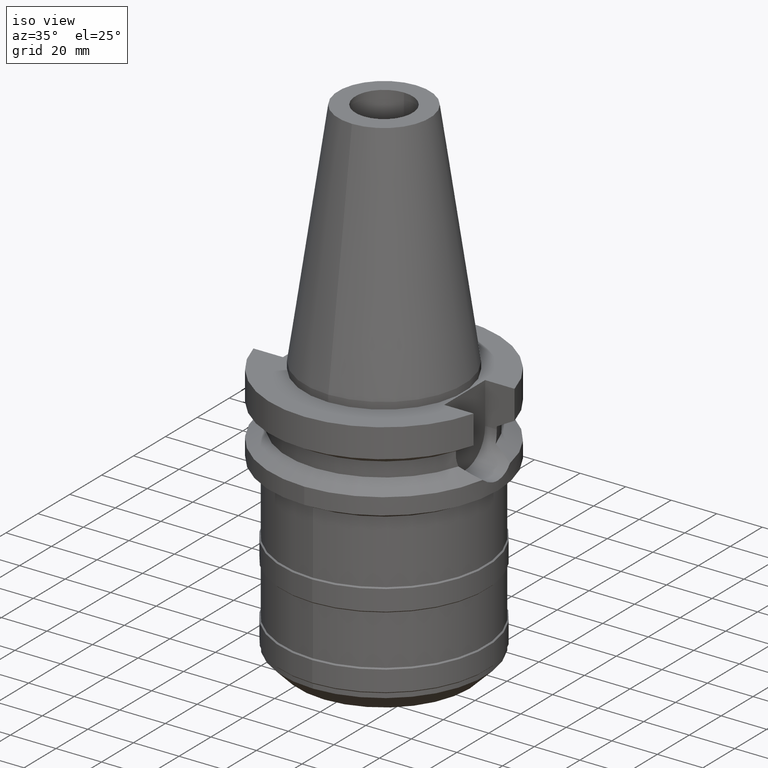
[diagram: clean part render]
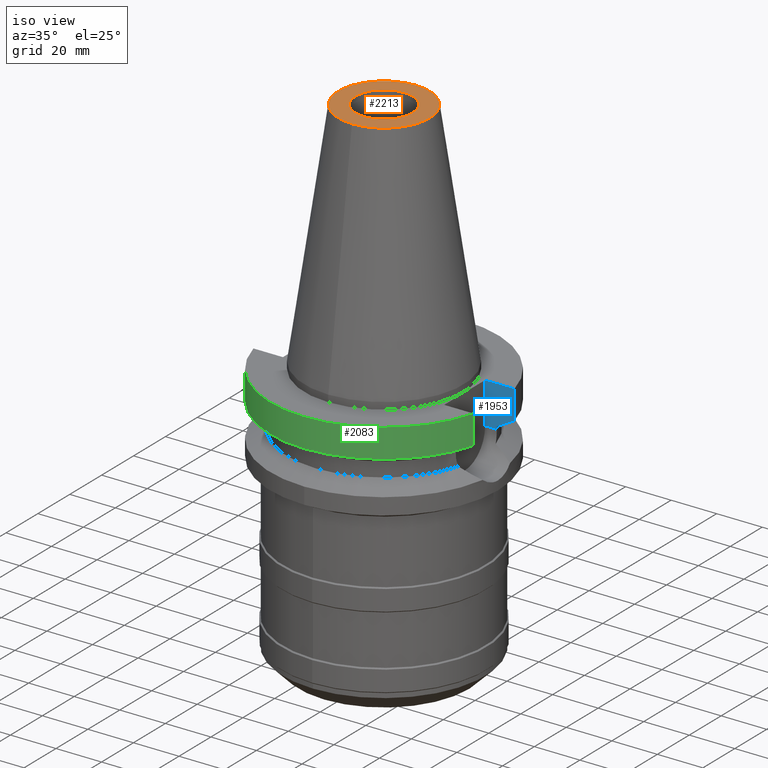
[diagram: same view with three faces highlighted in distinct colors, each labeled with its STEP entity id]
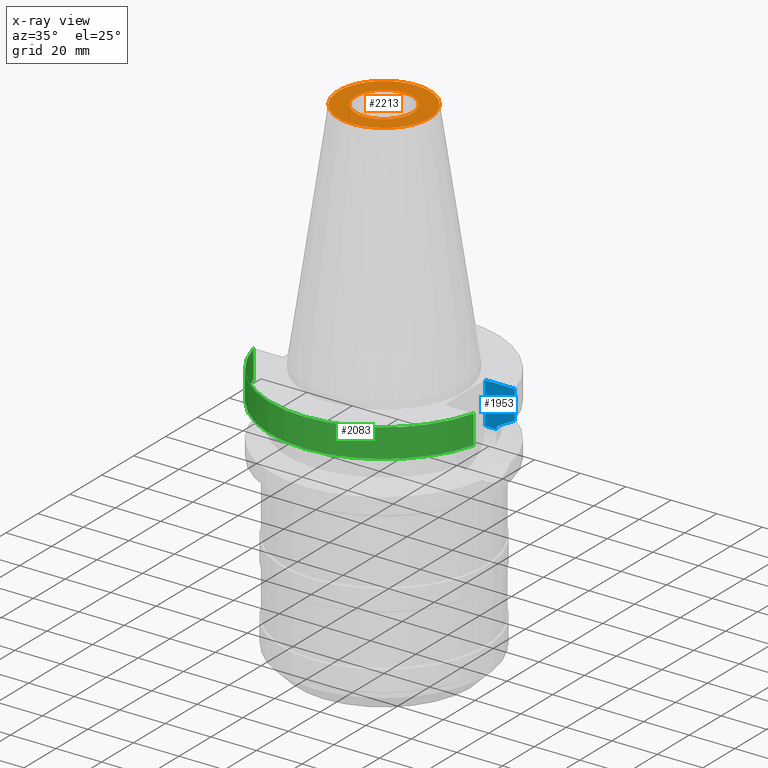
[diagram: x-ray of the same camera — body ghosted, the three highlighted faces saturated]
A machine part, iso view with three faces highlighted in distinct colors.
The next image is the same camera in x-ray (body ghosted, the three faces saturated) — at least one of them is partly hidden behind the body in this view.
Their STEP definitions:

[orange] entity #2213 — the highlighted planar face has unit normal (0, 0, -1).
#1108=CARTESIAN_POINT('',(0.E0,1.847992019913E-14,1.018E2));
#1109=DIRECTION('',(0.E0,0.E0,-1.E0));
#1110=DIRECTION('',(0.E0,-1.E0,0.E0));
#1111=AXIS2_PLACEMENT_3D('',#1108,#1109,#1110);
#1116=CARTESIAN_POINT('',(0.E0,1.847992019913E-14,1.018E2));
#1117=DIRECTION('',(0.E0,0.E0,-1.E0));
#1118=DIRECTION('',(0.E0,1.E0,0.E0));
#1119=AXIS2_PLACEMENT_3D('',#1116,#1117,#1118);
#1124=CARTESIAN_POINT('',(0.E0,2.607150570705E-14,1.018E2));
#1125=DIRECTION('',(0.E0,0.E0,1.E0));
#1126=DIRECTION('',(0.E0,-1.E0,0.E0));
#1127=AXIS2_PLACEMENT_3D('',#1124,#1125,#1126);
#1132=CARTESIAN_POINT('',(0.E0,2.607150570705E-14,1.018E2));
#1133=DIRECTION('',(0.E0,0.E0,1.E0));
#1134=DIRECTION('',(0.E0,1.E0,0.E0));
#1135=AXIS2_PLACEMENT_3D('',#1132,#1133,#1134);
#1141=CARTESIAN_POINT('',(0.E0,1.25E1,1.018E2));
#1143=VERTEX_POINT('',#1141);
#1144=CARTESIAN_POINT('',(0.E0,-1.25E1,1.018E2));
#1145=VERTEX_POINT('',#1144);
#1297=CARTESIAN_POINT('',(0.E0,2.007942971896E1,1.018E2));
#1298=VERTEX_POINT('',#1297);
#1299=CARTESIAN_POINT('',(0.E0,-2.007942971896E1,1.018E2));
#1300=VERTEX_POINT('',#1299);
#2200=CARTESIAN_POINT('',(0.E0,2.471337240679E-14,1.018E2));
#2201=DIRECTION('',(0.E0,0.E0,-1.E0));
#2202=DIRECTION('',(0.E0,-1.E0,0.E0));
#2203=AXIS2_PLACEMENT_3D('',#2200,#2201,#2202);
#2204=PLANE('',#2203);
#2205=ORIENTED_EDGE('',*,*,#2179,.T.);
#2206=ORIENTED_EDGE('',*,*,#2195,.T.);
#2207=EDGE_LOOP('',(#2205,#2206));
#2208=FACE_OUTER_BOUND('',#2207,.F.);
#2209=ORIENTED_EDGE('',*,*,#1316,.T.);
#2210=ORIENTED_EDGE('',*,*,#1334,.T.);
#2211=EDGE_LOOP('',(#2209,#2210));
#2212=FACE_BOUND('',#2211,.F.);
#1112=CIRCLE('',#1111,2.007942971896E1);
#1120=CIRCLE('',#1119,2.007942971896E1);
#1128=CIRCLE('',#1127,1.25E1);
#1136=CIRCLE('',#1135,1.25E1);
#1316=EDGE_CURVE('',#1145,#1143,#1128,.T.);
#1334=EDGE_CURVE('',#1143,#1145,#1136,.T.);
#2179=EDGE_CURVE('',#1300,#1298,#1112,.T.);
#2195=EDGE_CURVE('',#1298,#1300,#1120,.T.);
#2213=ADVANCED_FACE('',(#2208,#2212),#2204,.F.);

[blue] entity #1953 — the highlighted planar face has unit normal (0, 1, 0).
#568=DIRECTION('',(1.E0,-3.336643826790E-14,0.E0));
#569=VECTOR('',#568,5.110831884819E0);
#570=CARTESIAN_POINT('',(3.54E1,1.285E1,-2.115E1));
#571=LINE('',#570,#569);
#734=DIRECTION('',(9.415197085404E-7,-2.968231814303E-6,9.999999999952E-1));
#735=VECTOR('',#734,1.157154386402E0);
#736=CARTESIAN_POINT('',(4.051083188482E1,1.285E1,-2.115E1));
#737=LINE('',#736,#735);
#748=DIRECTION('',(1.E0,0.E0,0.E0));
#749=VECTOR('',#748,1.292057015392E1);
#750=CARTESIAN_POINT('',(3.54E1,1.285E1,-3.E0));
#751=LINE('',#750,#749);
#755=CARTESIAN_POINT('',(4.832056912839E1,1.285000385635E1,-1.566265769083E1));
#756=CARTESIAN_POINT('',(4.745408729804E1,1.285000385635E1,-1.614611802839E1));
#757=CARTESIAN_POINT('',(4.572065029684E1,1.284999774241E1,-1.711204855935E1));
#758=CARTESIAN_POINT('',(4.311729611592E1,1.285000211704E1,-1.855526451087E1));
#759=CARTESIAN_POINT('',(4.138011671736E1,1.284999656530E1,-1.951445439752E1));
#760=CARTESIAN_POINT('',(4.051083297430E1,1.284999656530E1,-1.999284561360E1));
#765=DIRECTION('',(0.E0,0.E0,-1.E0));
#766=VECTOR('',#765,1.815E1);
#767=CARTESIAN_POINT('',(3.54E1,1.285E1,-3.E0));
#768=LINE('',#767,#766);
#1057=DIRECTION('',(8.098849297919E-8,-3.045453396820E-7,1.E0));
#1058=VECTOR('',#1057,1.266265769083E1);
#1059=CARTESIAN_POINT('',(4.832056912839E1,1.285000385635E1,-1.566265769083E1));
#1060=LINE('',#1059,#1058);
#1233=CARTESIAN_POINT('',(3.54E1,1.285E1,-2.115E1));
#1234=VERTEX_POINT('',#1233);
#1235=CARTESIAN_POINT('',(4.051083188482E1,1.285E1,-2.115E1));
#1236=VERTEX_POINT('',#1235);
#1261=CARTESIAN_POINT('',(4.051083297430E1,1.284999656530E1,-1.999284561360E1));
#1262=VERTEX_POINT('',#1261);
#1278=CARTESIAN_POINT('',(4.832057015392E1,1.285E1,-3.E0));
#1280=VERTEX_POINT('',#1278);
#1281=CARTESIAN_POINT('',(3.54E1,1.285E1,-3.E0));
#1282=VERTEX_POINT('',#1281);
#1306=VERTEX_POINT('',#755);
#1936=CARTESIAN_POINT('',(3.54E1,1.285E1,-2.115E1));
#1937=DIRECTION('',(0.E0,1.E0,0.E0));
#1938=DIRECTION('',(0.E0,0.E0,1.E0));
#1939=AXIS2_PLACEMENT_3D('',#1936,#1937,#1938);
#1940=PLANE('',#1939);
#1941=ORIENTED_EDGE('',*,*,#1925,.F.);
#1942=ORIENTED_EDGE('',*,*,#1833,.F.);
#1944=ORIENTED_EDGE('',*,*,#1943,.F.);
#1946=ORIENTED_EDGE('',*,*,#1945,.T.);
#1948=ORIENTED_EDGE('',*,*,#1947,.F.);
#1950=ORIENTED_EDGE('',*,*,#1949,.T.);
#1951=EDGE_LOOP('',(#1941,#1942,#1944,#1946,#1948,#1950));
#1952=FACE_OUTER_BOUND('',#1951,.F.);
#761=B_SPLINE_CURVE_WITH_KNOTS('',3,(#755,#756,#757,#758,#759,#760),
.UNSPECIFIED.,.F.,.F.,(4,1,1,4),(0.E0,3.333333333333E-1,6.666666666667E-1,1.E0),
.UNSPECIFIED.);
#1833=EDGE_CURVE('',#1234,#1236,#571,.T.);
#1925=EDGE_CURVE('',#1236,#1262,#737,.T.);
#1943=EDGE_CURVE('',#1282,#1234,#768,.T.);
#1945=EDGE_CURVE('',#1282,#1280,#751,.T.);
#1947=EDGE_CURVE('',#1306,#1280,#1060,.T.);
#1949=EDGE_CURVE('',#1306,#1262,#761,.T.);
#1953=ADVANCED_FACE('',(#1952),#1940,.F.);

[green] entity #2083 — the highlighted cylindrical surface (partial cylindrical patch) has radius 50 mm, axis along (0, 0, -1).
#839=CARTESIAN_POINT('',(0.E0,2.607150570705E-14,-3.E0));
#840=DIRECTION('',(0.E0,0.E0,-1.E0));
#841=DIRECTION('',(9.664114030784E-1,-2.57E-1,0.E0));
#842=AXIS2_PLACEMENT_3D('',#839,#840,#841);
#847=CARTESIAN_POINT('',(0.E0,2.607150570705E-14,-3.E0));
#848=DIRECTION('',(0.E0,0.E0,-1.E0));
#849=DIRECTION('',(0.E0,-1.E0,0.E0));
#850=AXIS2_PLACEMENT_3D('',#847,#848,#849);
#952=CARTESIAN_POINT('',(0.E0,1.006319759054E-14,-1.566269223573E1));
#953=DIRECTION('',(0.E0,0.E0,1.E0));
#954=DIRECTION('',(-9.664114030784E-1,-2.57E-1,0.E0));
#955=AXIS2_PLACEMENT_3D('',#952,#953,#954);
#960=CARTESIAN_POINT('',(0.E0,1.006319759054E-14,-1.566269223573E1));
#961=DIRECTION('',(0.E0,0.E0,1.E0));
#962=DIRECTION('',(0.E0,-1.E0,0.E0));
#963=AXIS2_PLACEMENT_3D('',#960,#961,#962);
#984=DIRECTION('',(-8.098529171018E-8,3.045333006941E-7,1.E0));
#985=VECTOR('',#984,1.266265769220E1);
#986=CARTESIAN_POINT('',(-4.832056912843E1,-1.285000385620E1,
-1.566265769220E1));
#987=LINE('',#986,#985);
#991=DIRECTION('',(-8.100186648390E-8,-3.045956306082E-7,-1.E0));
#992=VECTOR('',#991,1.266265768513E1);
#993=CARTESIAN_POINT('',(4.832057015392E1,-1.285E1,-3.E0));
#994=LINE('',#993,#992);
#1269=CARTESIAN_POINT('',(-4.832057015392E1,-1.285E1,-3.E0));
#1270=VERTEX_POINT('',#1269);
#1271=CARTESIAN_POINT('',(-4.832056912843E1,-1.285000385620E1,
-1.566265769220E1));
#1272=VERTEX_POINT('',#1271);
#1285=CARTESIAN_POINT('',(4.832057015392E1,-1.285E1,-3.E0));
#1286=VERTEX_POINT('',#1285);
#1287=CARTESIAN_POINT('',(1.065814103640E-14,-5.E1,-3.E0));
#1288=VERTEX_POINT('',#1287);
#1302=CARTESIAN_POINT('',(0.E0,-5.E1,-1.566269223573E1));
#1303=CARTESIAN_POINT('',(4.832057015392E1,-1.285E1,-1.566269223573E1));
#1304=VERTEX_POINT('',#1302);
#1305=VERTEX_POINT('',#1303);
#2069=CARTESIAN_POINT('',(0.E0,2.607150570705E-14,1.1289E2));
#2070=DIRECTION('',(0.E0,0.E0,-1.E0));
#2071=DIRECTION('',(0.E0,-1.E0,0.E0));
#2072=AXIS2_PLACEMENT_3D('',#2069,#2070,#2071);
#2073=CYLINDRICAL_SURFACE('',#2072,5.E1);
#2074=ORIENTED_EDGE('',*,*,#2026,.T.);
#2075=ORIENTED_EDGE('',*,*,#1988,.F.);
#2076=ORIENTED_EDGE('',*,*,#1986,.F.);
#2078=ORIENTED_EDGE('',*,*,#2077,.T.);
#2079=ORIENTED_EDGE('',*,*,#2060,.F.);
#2080=ORIENTED_EDGE('',*,*,#2058,.F.);
#2081=EDGE_LOOP('',(#2074,#2075,#2076,#2078,#2079,#2080));
#2082=FACE_OUTER_BOUND('',#2081,.F.);
#843=CIRCLE('',#842,5.E1);
#851=CIRCLE('',#850,5.E1);
#956=CIRCLE('',#955,5.E1);
#964=CIRCLE('',#963,5.E1);
#1986=EDGE_CURVE('',#1286,#1288,#843,.T.);
#1988=EDGE_CURVE('',#1288,#1270,#851,.T.);
#2026=EDGE_CURVE('',#1272,#1270,#987,.T.);
#2058=EDGE_CURVE('',#1272,#1304,#956,.T.);
#2060=EDGE_CURVE('',#1304,#1305,#964,.T.);
#2077=EDGE_CURVE('',#1286,#1305,#994,.T.);
#2083=ADVANCED_FACE('',(#2082),#2073,.T.);